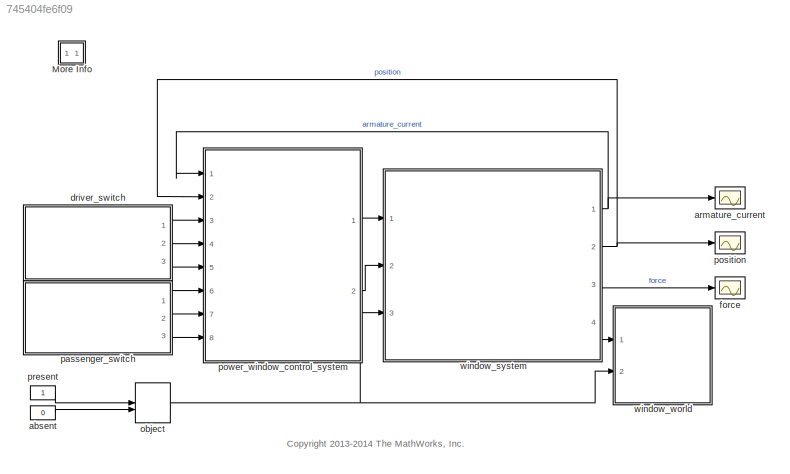
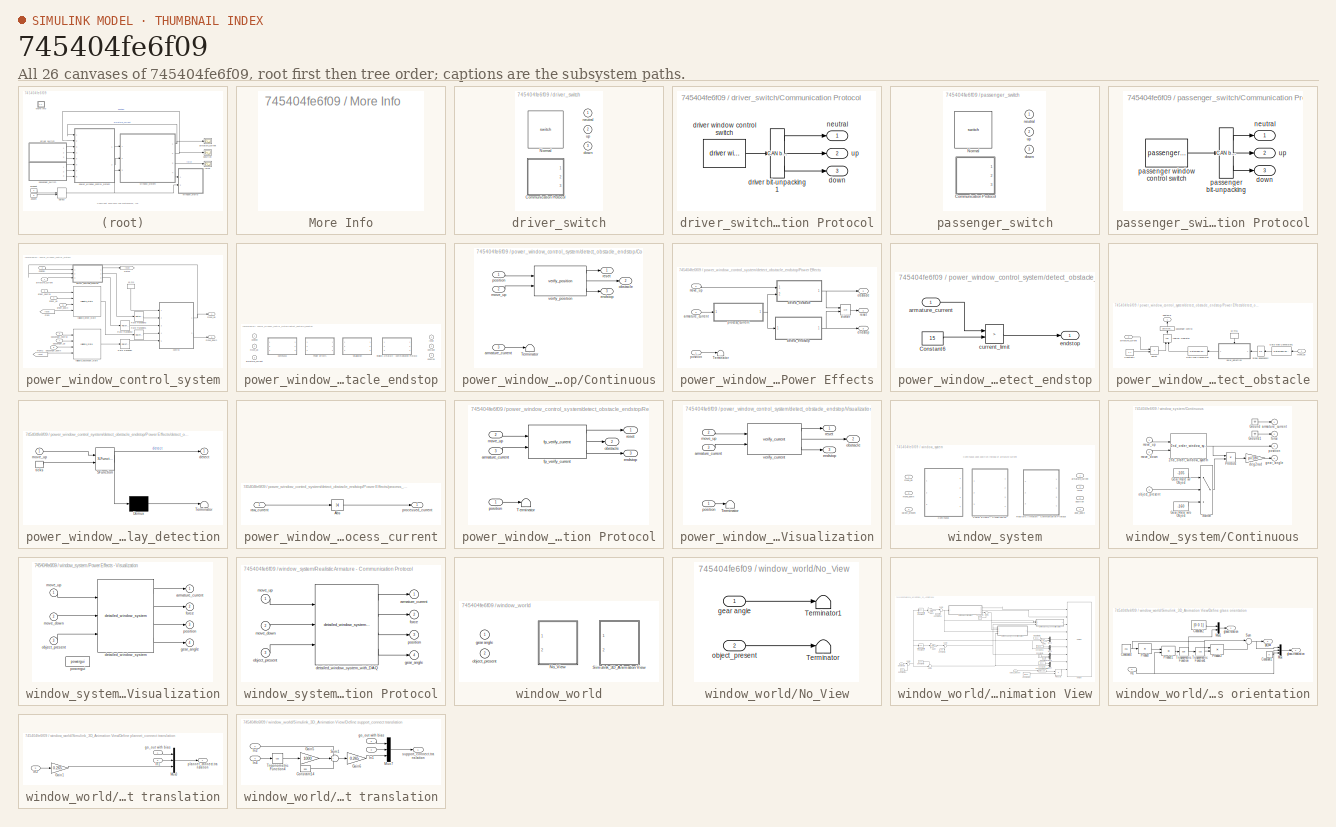
[diagram: thumbnail index - all 26 canvases of the model, root first then tree order]
MODEL slx_745404fe6f09
KIND model
CONFIG PreLoadFcn = if ~exist('CV', 'var') & exist('slexPowerWindowContinuous','file')\n   slexPowerWindowContinuous\nend
BLOCK [SubSystem] More Info
  OpenFcn = showdemo('slexPowerWindowScript')
  Ports = []
  RequestExecContextInheritance = off
BLOCK [Constant] absent
  OutDataTypeStr = boolean
  Value = 0
BLOCK [Scope] armature_current
  Floating = off
  LimitDataPoints = off
  NumInputPorts = 1
  Ports = [1]
  SaveName = ScopeData2
  ShowLegends = off
  YMax = 15
  YMin = -15
BLOCK [SubSystem] driver_switch
  Ports = [0, 3]
  RequestExecContextInheritance = off
  Variant = on
BLOCK [SubSystem] driver_switch/Communication Protocol
  Ports = [0, 3]
  RequestExecContextInheritance = off
  VariantControl = V5
BLOCK [Outport] driver_switch/Communication Protocol/down
  IconDisplay = Port number
  Port = 3
BLOCK [Reference] driver_switch/Communication Protocol/driver bit-unpacking1  REF=slrtlib/CAN/Utilities/CAN bit-unpacking 
  Ports = [1, 3]
  SourceBlock = slrtlib/CAN/Utilities/CAN bit-unpacking
  SourceType = double2bit
  bitpatterns = { [0:0] [1:1] [2:2] }
  dtypes = { 'boolean' 'boolean' 'boolean' }
BLOCK [Reference] driver_switch/Communication Protocol/driver window control switch  REF=slexPowerWindowDSPLib/driver window control
switch
  Ports = [0, 1]
  SourceBlock = slexPowerWindowDSPLib/driver window control\nswitch
  SourceType = SubSystem
BLOCK [Outport] driver_switch/Communication Protocol/neutral
  IconDisplay = Port number
BLOCK [Outport] driver_switch/Communication Protocol/up
  IconDisplay = Port number
  Port = 2
BLOCK [Reference] driver_switch/Normal  REF=slexPowerWindowSALib/switch
  Ports = [0, 3]
  SourceBlock = slexPowerWindowSALib/switch
  SourceType = SubSystem
  VariantControl = V1234
BLOCK [Outport] driver_switch/down
  IconDisplay = Port number
  Port = 3
BLOCK [Outport] driver_switch/neutral
  IconDisplay = Port number
BLOCK [Outport] driver_switch/up
  IconDisplay = Port number
  Port = 2
BLOCK [Scope] force
  Floating = off
  LimitDataPoints = off
  NumInputPorts = 1
  Ports = [1]
  SaveName = ScopeData4
  ShowLegends = off
  YMax = 75
  YMin = -175
BLOCK [ManualSwitch] object
  CurrentSetting = 0
BLOCK [SubSystem] passenger_switch
  Ports = [0, 3]
  RequestExecContextInheritance = off
  Variant = on
BLOCK [SubSystem] passenger_switch/Communication Protocol
  Ports = [0, 3]
  RequestExecContextInheritance = off
  VariantControl = V5
BLOCK [Outport] passenger_switch/Communication Protocol/down
  IconDisplay = Port number
  Port = 3
BLOCK [Outport] passenger_switch/Communication Protocol/neutral
  IconDisplay = Port number
BLOCK [Reference] passenger_switch/Communication Protocol/passenger bit-unpacking  REF=slrtlib/CAN/Utilities/CAN bit-unpacking 
  Ports = [1, 3]
  SourceBlock = slrtlib/CAN/Utilities/CAN bit-unpacking
  SourceType = double2bit
  bitpatterns = { [0:0] [1:1] [2:2] }
  dtypes = { 'boolean' 'boolean' 'boolean' }
BLOCK [Reference] passenger_switch/Communication Protocol/passenger window control switch  REF=slexPowerWindowDSPLib/passenger window control
switch
  Ports = [0, 1]
  SourceBlock = slexPowerWindowDSPLib/passenger window control\nswitch
  SourceType = SubSystem
BLOCK [Outport] passenger_switch/Communication Protocol/up
  IconDisplay = Port number
  Port = 2
BLOCK [Reference] passenger_switch/Normal  REF=slexPowerWindowSALib/switch
  Ports = [0, 3]
  SourceBlock = slexPowerWindowSALib/switch
  SourceType = SubSystem
  VariantControl = V1234
BLOCK [Outport] passenger_switch/down
  IconDisplay = Port number
  Port = 3
BLOCK [Outport] passenger_switch/neutral
  IconDisplay = Port number
BLOCK [Outport] passenger_switch/up
  IconDisplay = Port number
  Port = 2
BLOCK [Scope] position
  Floating = off
  LimitDataPoints = off
  NumInputPorts = 1
  Ports = [1]
  ShowLegends = off
  TimeRange = 10
  YMax = 0.5
  YMin = -0.5
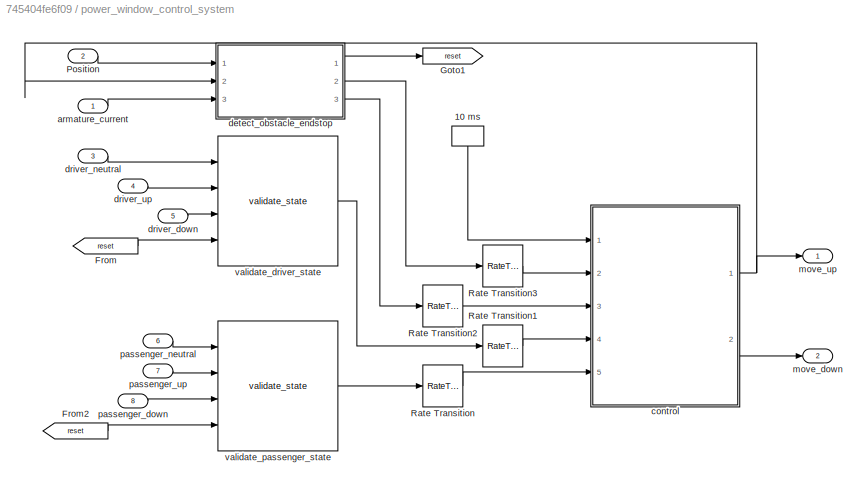
BLOCK [SubSystem] power_window_control_system
  Ports = [8, 2]
  RequestExecContextInheritance = off
BLOCK [DiscretePulseGenerator] power_window_control_system/10 ms
  Ports = [0, 1]
  SampleTime = 10e-3
BLOCK [From] power_window_control_system/From
  CloseFcn = tagdialog Close
  GotoTag = reset
BLOCK [From] power_window_control_system/From2
  CloseFcn = tagdialog Close
  GotoTag = reset
BLOCK [Goto] power_window_control_system/Goto1
  GotoTag = reset
BLOCK [Inport] power_window_control_system/Position
  IconDisplay = Port number
  Port = 2
BLOCK [RateTransition] power_window_control_system/Rate Transition
BLOCK [RateTransition] power_window_control_system/Rate Transition1
BLOCK [RateTransition] power_window_control_system/Rate Transition2
BLOCK [RateTransition] power_window_control_system/Rate Transition3
BLOCK [Inport] power_window_control_system/armature_current
  IconDisplay = Port number
BLOCK [ModelReference] power_window_control_system/control 
  CopyOfModelName = slexPowerWindowControl.slx
  DefaultDataLogging = on
  ModelNameDialog = slexPowerWindowControl.slx
  ModelReferenceVersion = 1.83
  Ports = [5, 2]
BLOCK [SubSystem] power_window_control_system/detect_obstacle_endstop
  Ports = [3, 3]
  RequestExecContextInheritance = off
  Variant = on
BLOCK [SubSystem] power_window_control_system/detect_obstacle_endstop/Continuous
  Ports = [3, 3]
  RequestExecContextInheritance = off
  VariantControl = V1
BLOCK [Terminator] power_window_control_system/detect_obstacle_endstop/Continuous/Terminator
BLOCK [Inport] power_window_control_system/detect_obstacle_endstop/Continuous/armature_current
  IconDisplay = Port number
  Port = 3
BLOCK [Outport] power_window_control_system/detect_obstacle_endstop/Continuous/endstop
  IconDisplay = Port number
  Port = 3
BLOCK [Inport] power_window_control_system/detect_obstacle_endstop/Continuous/move_up
  IconDisplay = Port number
  Port = 2
BLOCK [Outport] power_window_control_system/detect_obstacle_endstop/Continuous/obstacle
  IconDisplay = Port number
  Port = 2
BLOCK [Inport] power_window_control_system/detect_obstacle_endstop/Continuous/position
  IconDisplay = Port number
BLOCK [Outport] power_window_control_system/detect_obstacle_endstop/Continuous/reset
  IconDisplay = Port number
BLOCK [Reference] power_window_control_system/detect_obstacle_endstop/Continuous/verify_position  REF=slexPowerWindowSALib/verify_position
  Ports = [2, 3]
  SourceBlock = slexPowerWindowSALib/verify_position
  SourceType = SubSystem
BLOCK [SubSystem] power_window_control_system/detect_obstacle_endstop/Power Effects
  Ports = [3, 3]
  RequestExecContextInheritance = off
  VariantControl = V2
BLOCK [Terminator] power_window_control_system/detect_obstacle_endstop/Power Effects/Terminator
BLOCK [Inport] power_window_control_system/detect_obstacle_endstop/Power Effects/armature_current
  IconDisplay = Port number
  Port = 3
BLOCK [SubSystem] power_window_control_system/detect_obstacle_endstop/Power Effects/detect_endstop
  Ports = [1, 1]
  RequestExecContextInheritance = off
BLOCK [Constant] power_window_control_system/detect_obstacle_endstop/Power Effects/detect_endstop/Constant6
  Value = 15
BLOCK [Inport] power_window_control_system/detect_obstacle_endstop/Power Effects/detect_endstop/armature_current
  IconDisplay = Port number
BLOCK [RelationalOperator] power_window_control_system/detect_obstacle_endstop/Power Effects/detect_endstop/current_limit
  Operator = >
  Ports = [2, 1]
BLOCK [Outport] power_window_control_system/detect_obstacle_endstop/Power Effects/detect_endstop/endstop
  IconDisplay = Port number
BLOCK [SubSystem] power_window_control_system/detect_obstacle_endstop/Power Effects/detect_obstacle
  Ports = [2, 1]
  RequestExecContextInheritance = off
BLOCK [DiscretePulseGenerator] power_window_control_system/detect_obstacle_endstop/Power Effects/detect_obstacle/10 ms1
  Ports = [0, 1]
  SampleTime = 10e-3
BLOCK [Constant] power_window_control_system/detect_obstacle_endstop/Power Effects/detect_obstacle/Constant1
  Value = 1.7
BLOCK [DataTypeConversion] power_window_control_system/detect_obstacle_endstop/Power Effects/detect_obstacle/Data Type Conversion
  RndMeth = Floor
  SaturateOnIntegerOverflow = off
BLOCK [DataTypeConversion] power_window_control_system/detect_obstacle_endstop/Power Effects/detect_obstacle/Data Type Conversion1
  RndMeth = Floor
  SaturateOnIntegerOverflow = off
BLOCK [Logic] power_window_control_system/detect_obstacle_endstop/Power Effects/detect_obstacle/Logical Operator
  AllPortsSameDT = off
  IconShape = distinctive
  OutDataTypeStr = boolean
  Ports = [2, 1]
BLOCK [Inport] power_window_control_system/detect_obstacle_endstop/Power Effects/detect_obstacle/armature_current
  IconDisplay = Port number
  Port = 2
BLOCK [UnitDelay] power_window_control_system/detect_obstacle_endstop/Power Effects/detect_obstacle/break dependency
  SampleTime = 0.01
BLOCK [SubSystem] power_window_control_system/detect_obstacle_endstop/Power Effects/detect_obstacle/delay_detection
  ErrorFcn = Stateflow.Translate.translate
  PermitHierarchicalResolution = ExplicitOnly
  Ports = [1, 1, 0, 1]
  RequestExecContextInheritance = off
  SFBlockType = Chart
  TreatAsAtomicUnit = on
BLOCK [Demux] power_window_control_system/detect_obstacle_endstop/Power Effects/detect_obstacle/delay_detection/ Demux 
  Outputs = 1
  Ports = [1, 1]
BLOCK [S-Function] power_window_control_system/detect_obstacle_endstop/Power Effects/detect_obstacle/delay_detection/ SFunction 
  EnableBusSupport = on
  FunctionName = sf_sfun
  PortCounts = [2 2]
  Ports = [2, 2]
  Tag = Stateflow S-Function slexPowerWindowExample 3
BLOCK [Terminator] power_window_control_system/detect_obstacle_endstop/Power Effects/detect_obstacle/delay_detection/ Terminator 
BLOCK [Outport] power_window_control_system/detect_obstacle_endstop/Power Effects/detect_obstacle/delay_detection/ detect
  IconDisplay = Port number
BLOCK [Inport] power_window_control_system/detect_obstacle_endstop/Power Effects/detect_obstacle/delay_detection/move_up
  IconDisplay = Port number
BLOCK [TriggerPort] power_window_control_system/detect_obstacle_endstop/Power Effects/detect_obstacle/delay_detection/ticks
  Ports = [0, 1]
  ShowOutputPort = on
  TriggerType = either
BLOCK [Inport] power_window_control_system/detect_obstacle_endstop/Power Effects/detect_obstacle/move_up
  IconDisplay = Port number
BLOCK [RelationalOperator] power_window_control_system/detect_obstacle_endstop/Power Effects/detect_obstacle/object
  Operator = >
  Ports = [2, 1]
BLOCK [Outport] power_window_control_system/detect_obstacle_endstop/Power Effects/detect_obstacle/obstacle
  IconDisplay = Port number
BLOCK [DataTypeConversion] power_window_control_system/detect_obstacle_endstop/Power Effects/detect_obstacle/passenger control
  OutDataTypeStr = boolean
BLOCK [Logic] power_window_control_system/detect_obstacle_endstop/Power Effects/either
  Operator = OR
  Ports = [2, 1]
BLOCK [Outport] power_window_control_system/detect_obstacle_endstop/Power Effects/endstop
  IconDisplay = Port number
  Port = 3
BLOCK [Inport] power_window_control_system/detect_obstacle_endstop/Power Effects/move_up
  IconDisplay = Port number
  Port = 2
BLOCK [Outport] power_window_control_system/detect_obstacle_endstop/Power Effects/obstacle
  IconDisplay = Port number
  Port = 2
BLOCK [Inport] power_window_control_system/detect_obstacle_endstop/Power Effects/position
  IconDisplay = Port number
BLOCK [SubSystem] power_window_control_system/detect_obstacle_endstop/Power Effects/process_current
  Ports = [1, 1]
  RequestExecContextInheritance = off
BLOCK [Abs] power_window_control_system/detect_obstacle_endstop/Power Effects/process_current/Abs
BLOCK [Outport] power_window_control_system/detect_obstacle_endstop/Power Effects/process_current/processed_current
  IconDisplay = Port number
BLOCK [Inport] power_window_control_system/detect_obstacle_endstop/Power Effects/process_current/raw_current
  IconDisplay = Port number
BLOCK [Outport] power_window_control_system/detect_obstacle_endstop/Power Effects/reset
  IconDisplay = Port number
BLOCK [SubSystem] power_window_control_system/detect_obstacle_endstop/Realistic Armature - Communication Protocol
  Ports = [3, 3]
  RequestExecContextInheritance = off
  VariantControl = V45
BLOCK [Terminator] power_window_control_system/detect_obstacle_endstop/Realistic Armature - Communication Protocol/Terminator
BLOCK [Inport] power_window_control_system/detect_obstacle_endstop/Realistic Armature - Communication Protocol/armature_current
  IconDisplay = Port number
  Port = 3
BLOCK [Outport] power_window_control_system/detect_obstacle_endstop/Realistic Armature - Communication Protocol/endstop
  IconDisplay = Port number
  Port = 3
BLOCK [Reference] power_window_control_system/detect_obstacle_endstop/Realistic Armature - Communication Protocol/fp_verify_current  REF=slexPowerWindowSALib/fp_verify_current
  Ports = [2, 3]
  SourceBlock = slexPowerWindowSALib/fp_verify_current
  SourceType = SubSystem
BLOCK [Inport] power_window_control_system/detect_obstacle_endstop/Realistic Armature - Communication Protocol/move_up
  IconDisplay = Port number
  Port = 2
BLOCK [Outport] power_window_control_system/detect_obstacle_endstop/Realistic Armature - Communication Protocol/obstacle
  IconDisplay = Port number
  Port = 2
BLOCK [Inport] power_window_control_system/detect_obstacle_endstop/Realistic Armature - Communication Protocol/position
  IconDisplay = Port number
BLOCK [Outport] power_window_control_system/detect_obstacle_endstop/Realistic Armature - Communication Protocol/reset
  IconDisplay = Port number
BLOCK [SubSystem] power_window_control_system/detect_obstacle_endstop/Visualization
  Ports = [3, 3]
  RequestExecContextInheritance = off
  VariantControl = V3
BLOCK [Terminator] power_window_control_system/detect_obstacle_endstop/Visualization/Terminator
BLOCK [Inport] power_window_control_system/detect_obstacle_endstop/Visualization/armature_current
  IconDisplay = Port number
  Port = 3
BLOCK [Outport] power_window_control_system/detect_obstacle_endstop/Visualization/endstop
  IconDisplay = Port number
  Port = 3
BLOCK [Inport] power_window_control_system/detect_obstacle_endstop/Visualization/move_up
  IconDisplay = Port number
  Port = 2
BLOCK [Outport] power_window_control_system/detect_obstacle_endstop/Visualization/obstacle
  IconDisplay = Port number
  Port = 2
BLOCK [Inport] power_window_control_system/detect_obstacle_endstop/Visualization/position
  IconDisplay = Port number
BLOCK [Outport] power_window_control_system/detect_obstacle_endstop/Visualization/reset
  IconDisplay = Port number
BLOCK [Reference] power_window_control_system/detect_obstacle_endstop/Visualization/verify_current  REF=slexPowerWindowSALib/verify_current
  Ports = [2, 3]
  SourceBlock = slexPowerWindowSALib/verify_current
  SourceType = SubSystem
BLOCK [Inport] power_window_control_system/detect_obstacle_endstop/armature_current
  IconDisplay = Port number
  Port = 3
BLOCK [Outport] power_window_control_system/detect_obstacle_endstop/endstop
  IconDisplay = Port number
  Port = 3
BLOCK [Inport] power_window_control_system/detect_obstacle_endstop/move_up
  IconDisplay = Port number
  Port = 2
BLOCK [Outport] power_window_control_system/detect_obstacle_endstop/obstacle
  IconDisplay = Port number
  Port = 2
BLOCK [Inport] power_window_control_system/detect_obstacle_endstop/position
  IconDisplay = Port number
BLOCK [Outport] power_window_control_system/detect_obstacle_endstop/reset
  IconDisplay = Port number
BLOCK [Inport] power_window_control_system/driver_down
  IconDisplay = Port number
  Port = 5
BLOCK [Inport] power_window_control_system/driver_neutral
  IconDisplay = Port number
  Port = 3
BLOCK [Inport] power_window_control_system/driver_up
  IconDisplay = Port number
  Port = 4
BLOCK [Outport] power_window_control_system/move_down
  IconDisplay = Port number
  Port = 2
BLOCK [Outport] power_window_control_system/move_up
  IconDisplay = Port number
BLOCK [Inport] power_window_control_system/passenger_down
  IconDisplay = Port number
  Port = 8
BLOCK [Inport] power_window_control_system/passenger_neutral
  IconDisplay = Port number
  Port = 6
BLOCK [Inport] power_window_control_system/passenger_up
  IconDisplay = Port number
  Port = 7
BLOCK [Reference] power_window_control_system/validate_driver_state  REF=slexPowerWindowSALib/validate_state
  Ports = [4, 1]
  SourceBlock = slexPowerWindowSALib/validate_state
  SourceType = SubSystem
BLOCK [Reference] power_window_control_system/validate_passenger_state  REF=slexPowerWindowSALib/validate_state
  Ports = [4, 1]
  SourceBlock = slexPowerWindowSALib/validate_state
  SourceType = SubSystem
BLOCK [Constant] present
  OutDataTypeStr = boolean
BLOCK [SubSystem] window_system
  Ports = [3, 4]
  RequestExecContextInheritance = off
  Variant = on
BLOCK [SubSystem] window_system/Continuous
  Ports = [3, 4]
  RequestExecContextInheritance = off
  VariantControl = V1
BLOCK [Reference] window_system/Continuous/2nd_order_window_system  REF=slexPowerWindowSALib/2nd_order_window_system
  Ports = [2, 1]
  SourceBlock = slexPowerWindowSALib/2nd_order_window_system
  SourceType = SubSystem
BLOCK [Constant] window_system/Continuous/Gear Rate w// Object
  AttributesFormatString = Units: deg/m
  Value = -105
BLOCK [Constant] window_system/Continuous/Gear Rate w//o Object
  AttributesFormatString = Units: deg/m
  Value = -160
BLOCK [Ground] window_system/Continuous/Ground
BLOCK [Ground] window_system/Continuous/Ground1
BLOCK [Product] window_system/Continuous/Product
  InputSameDT = off
  OutDataTypeStr = Inherit: Inherit via internal rule
  Ports = [2, 1]
  RndMeth = Floor
  SaturateOnIntegerOverflow = off
BLOCK [Switch] window_system/Continuous/Switch
  Criteria = u2 ~= 0
  InputSameDT = off
  SaturateOnIntegerOverflow = off
BLOCK [Outport] window_system/Continuous/armature_current
  IconDisplay = Port number
BLOCK [Gain] window_system/Continuous/deg2rad
  Gain = pi/180
  OutDataTypeStr = Inherit: Inherit via internal rule
  ParamDataTypeStr = Inherit: Inherit via internal rule
  SaturateOnIntegerOverflow = off
BLOCK [Outport] window_system/Continuous/force
  IconDisplay = Port number
  Port = 2
BLOCK [Outport] window_system/Continuous/gear_angle
  IconDisplay = Port number
  Port = 4
BLOCK [Inport] window_system/Continuous/move_down
  IconDisplay = Port number
  Port = 2
BLOCK [Inport] window_system/Continuous/move_up
  IconDisplay = Port number
BLOCK [Inport] window_system/Continuous/object_present
  IconDisplay = Port number
  Port = 3
BLOCK [Outport] window_system/Continuous/position
  IconDisplay = Port number
  Port = 3
BLOCK [SubSystem] window_system/Power Effects - Visualization
  Ports = [3, 4]
  RequestExecContextInheritance = off
  VariantControl = V23
BLOCK [Outport] window_system/Power Effects - Visualization/armature_current
  IconDisplay = Port number
BLOCK [Reference] window_system/Power Effects - Visualization/detailed_window_system  REF=slexPowerWindowPHYSLib/detailed_window_system
  Ports = [3, 4]
  SourceBlock = slexPowerWindowPHYSLib/detailed_window_system
  SourceType = SubSystem
BLOCK [Outport] window_system/Power Effects - Visualization/force
  IconDisplay = Port number
  Port = 2
BLOCK [Outport] window_system/Power Effects - Visualization/gear_angle
  IconDisplay = Port number
  Port = 4
BLOCK [Inport] window_system/Power Effects - Visualization/move_down
  IconDisplay = Port number
  Port = 2
BLOCK [Inport] window_system/Power Effects - Visualization/move_up
  IconDisplay = Port number
BLOCK [Inport] window_system/Power Effects - Visualization/object_present
  IconDisplay = Port number
  Port = 3
BLOCK [Outport] window_system/Power Effects - Visualization/position
  IconDisplay = Port number
  Port = 3
BLOCK [Reference] window_system/Power Effects - Visualization/powergui  REF=powerlib/powergui
  DisableRonSwitches = off
  DisableSnubberDevices = off
  DisableVfSwitches = off
  DisplayEquations = off
  DisplayStyle = 1
  EnableUseOfTLC = off
  ErrMax = 1e-4
  Frange = [0:2:500]
  FreqAxis = off
  FunctionMessages = on
  HookPort = off
  Interpol = off
  Iterations = 50
  MaxFrequency = 1000
  Pbase = 100e6
  Ports = []
  ResistiveCurrentMeasurement = off
  RestoreLinks = warning
  RmsSteady = 1
  SPID = off
  SampleTime = 50e-6
  ShowGrid = off
  SolverType = Tustin
  SourceBlock = powerlib/powergui
  SourceType = PSB option menu block
  StartTime = 0.0
  SwTol = 0
  Ts = 0
  UnitsV = kV
  UnitsW = MW
  UserDataPersistent = on
  Xlog = on
  Ylog = off
  ZoomFFT = on
  cycles = 1
  display = off
  echomessages = off
  frequency = 60
  frequencyindice = 0
  frequencyindicesteady = 1
  fundamental = 60
  methode = off
  save = off
  structure = 0
  variable = ZData
  x0status = blocks
BLOCK [SubSystem] window_system/Realistic Armature - Communication Protocol
  Ports = [3, 4]
  RequestExecContextInheritance = off
  VariantControl = V45
BLOCK [Outport] window_system/Realistic Armature - Communication Protocol/armature_current
  IconDisplay = Port number
BLOCK [Reference] window_system/Realistic Armature - Communication Protocol/detailed_window_system_with_DAQ  REF=slexPowerWindowPHYSLib/detailed_window_system_with_DAQ
  Ports = [3, 4]
  SourceBlock = slexPowerWindowPHYSLib/detailed_window_system_with_DAQ
  SourceType = SubSystem
  VariantControl = Variant3
BLOCK [Outport] window_system/Realistic Armature - Communication Protocol/force
  IconDisplay = Port number
  Port = 2
BLOCK [Outport] window_system/Realistic Armature - Communication Protocol/gear_angle
  IconDisplay = Port number
  Port = 4
BLOCK [Inport] window_system/Realistic Armature - Communication Protocol/move_down
  IconDisplay = Port number
  Port = 2
BLOCK [Inport] window_system/Realistic Armature - Communication Protocol/move_up
  IconDisplay = Port number
BLOCK [Inport] window_system/Realistic Armature - Communication Protocol/object_present
  IconDisplay = Port number
  Port = 3
BLOCK [Outport] window_system/Realistic Armature - Communication Protocol/position
  IconDisplay = Port number
  Port = 3
BLOCK [Outport] window_system/armature_current
  IconDisplay = Port number
BLOCK [Outport] window_system/force
  IconDisplay = Port number
  Port = 3
BLOCK [Outport] window_system/gear_angle
  IconDisplay = Port number
  Port = 4
BLOCK [Inport] window_system/move_down
  IconDisplay = Port number
  Port = 2
BLOCK [Inport] window_system/move_up
  IconDisplay = Port number
BLOCK [Inport] window_system/object_present
  IconDisplay = Port number
  Port = 3
BLOCK [Outport] window_system/position
  IconDisplay = Port number
  Port = 2
BLOCK [SubSystem] window_world
  LoadFcn = if license('test','virtual_reality_toolbox') & exist('slexPowerWindowMechWindow.wrl','file')\n     SL3DBlock = [gcs '/window_world/Simulink_3D_Animation View/VR Sink'];\n     vrmfunc('FnOpen', get_param(SL3DBlock,'handle'));\nend
  Ports = [2]
  RequestExecContextInheritance = off
  Variant = on
BLOCK [SubSystem] window_world/No_View
  Ports = [2]
  RequestExecContextInheritance = off
  VariantControl = V0
BLOCK [Terminator] window_world/No_View/Terminator
BLOCK [Terminator] window_world/No_View/Terminator1
BLOCK [Inport] window_world/No_View/gear angle
  IconDisplay = Port number
BLOCK [Inport] window_world/No_View/object_present
  IconDisplay = Port number
  Port = 2
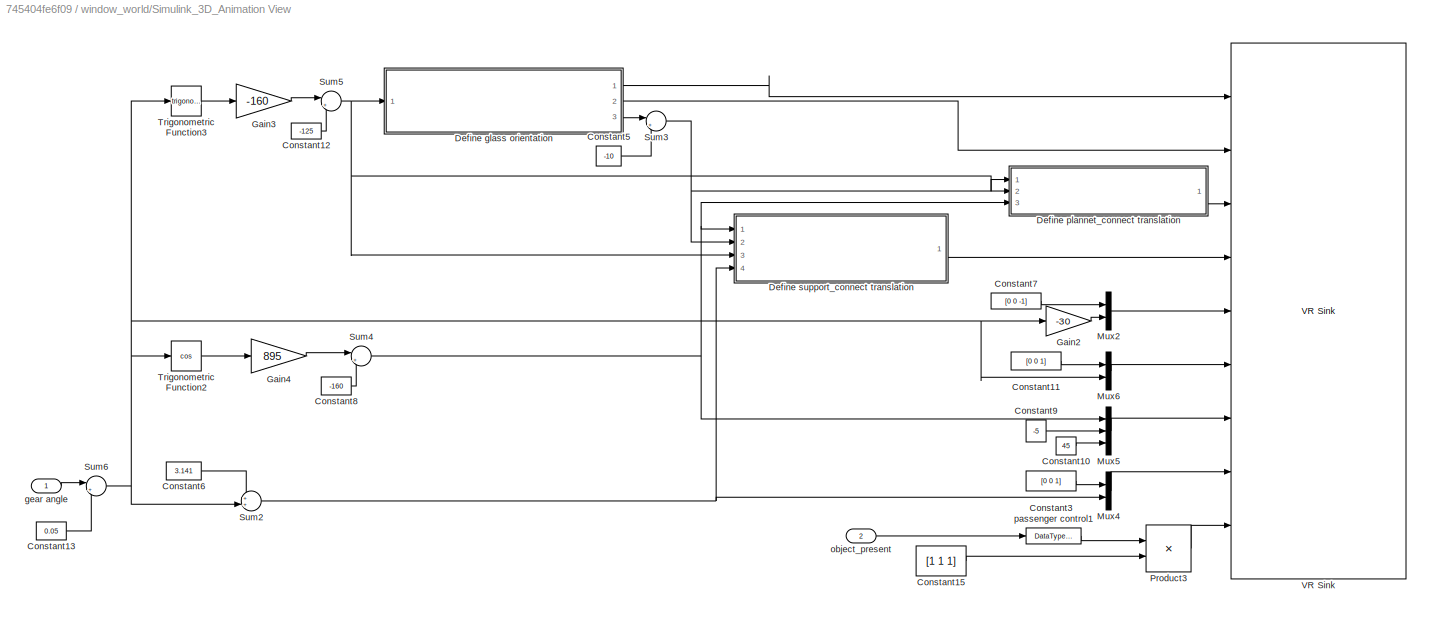
BLOCK [SubSystem] window_world/Simulink_3D_Animation View
  Ports = [2]
  RequestExecContextInheritance = off
  VariantControl = V12345
BLOCK [Constant] window_world/Simulink_3D_Animation View/Constant10
  Value = 45
BLOCK [Constant] window_world/Simulink_3D_Animation View/Constant11
  Value = [0 0 1]
BLOCK [Constant] window_world/Simulink_3D_Animation View/Constant12
  Value = -125
BLOCK [Constant] window_world/Simulink_3D_Animation View/Constant13
  Value = 0.05
BLOCK [Constant] window_world/Simulink_3D_Animation View/Constant15
  Value = [1 1 1]
BLOCK [Constant] window_world/Simulink_3D_Animation View/Constant3
  Value = [0 0 1]
BLOCK [Constant] window_world/Simulink_3D_Animation View/Constant5
  Value = -10
BLOCK [Constant] window_world/Simulink_3D_Animation View/Constant6
  Value = 3.141
BLOCK [Constant] window_world/Simulink_3D_Animation View/Constant7
  Value = [0 0 -1]
BLOCK [Constant] window_world/Simulink_3D_Animation View/Constant8
  Value = -160
BLOCK [Constant] window_world/Simulink_3D_Animation View/Constant9
  Value = -5
BLOCK [SubSystem] window_world/Simulink_3D_Animation View/Define glass orientation
  Ports = [1, 3]
  RequestExecContextInheritance = off
BLOCK [Constant] window_world/Simulink_3D_Animation View/Define glass orientation/Constant1
  Value = 0
BLOCK [Constant] window_world/Simulink_3D_Animation View/Define glass orientation/Constant2
  Value = [0 0 1]
BLOCK [Constant] window_world/Simulink_3D_Animation View/Define glass orientation/Constant4
  Value = 265
BLOCK [Inport] window_world/Simulink_3D_Animation View/Define glass orientation/In1
  IconDisplay = Port number
BLOCK [Mux] window_world/Simulink_3D_Animation View/Define glass orientation/Mux
  DisplayOption = bar
  Inputs = 3
  Ports = [3, 1]
BLOCK [Mux] window_world/Simulink_3D_Animation View/Define glass orientation/Mux1
  DisplayOption = bar
  Inputs = 2
  Ports = [2, 1]
BLOCK [Product] window_world/Simulink_3D_Animation View/Define glass orientation/Product
  Inputs = /
  Ports = [1, 1]
  RndMeth = Floor
BLOCK [Product] window_world/Simulink_3D_Animation View/Define glass orientation/Product1
  Ports = [2, 1]
  RndMeth = Floor
BLOCK [Product] window_world/Simulink_3D_Animation View/Define glass orientation/Product2
  Ports = [2, 1]
  RndMeth = Floor
BLOCK [Sum] window_world/Simulink_3D_Animation View/Define glass orientation/Sum
  IconShape = round
  Inputs = |-+
  Ports = [2, 1]
BLOCK [Trigonometry] window_world/Simulink_3D_Animation View/Define glass orientation/Trigonometric Function
  Operator = asin
  Ports = [1, 1]
BLOCK [Trigonometry] window_world/Simulink_3D_Animation View/Define glass orientation/Trigonometric Function1
  Operator = cos
  Ports = [1, 1]
BLOCK [Outport] window_world/Simulink_3D_Animation View/Define glass orientation/glass.rotation
  IconDisplay = Port number
BLOCK [Outport] window_world/Simulink_3D_Animation View/Define glass orientation/glass.translation
  IconDisplay = Port number
  Port = 2
BLOCK [Outport] window_world/Simulink_3D_Animation View/Define glass orientation/go_out
  IconDisplay = Port number
  Port = 3
BLOCK [SubSystem] window_world/Simulink_3D_Animation View/Define plannet_connect translation
  Ports = [3, 1]
  RequestExecContextInheritance = off
BLOCK [Gain] window_world/Simulink_3D_Animation View/Define plannet_connect translation/Gain1
  Gain = 0.265
BLOCK [Inport] window_world/Simulink_3D_Animation View/Define plannet_connect translation/In1
  IconDisplay = Port number
  Port = 2
BLOCK [Inport] window_world/Simulink_3D_Animation View/Define plannet_connect translation/In2
  IconDisplay = Port number
  Port = 3
BLOCK [Mux] window_world/Simulink_3D_Animation View/Define plannet_connect translation/Mux3
  DisplayOption = bar
  Inputs = 3
  Ports = [3, 1]
BLOCK [Inport] window_world/Simulink_3D_Animation View/Define plannet_connect translation/go_out with bias
  IconDisplay = Port number
BLOCK [Outport] window_world/Simulink_3D_Animation View/Define plannet_connect translation/plannet_connect.translation
  IconDisplay = Port number
BLOCK [SubSystem] window_world/Simulink_3D_Animation View/Define support_connect translation
  Ports = [4, 1]
  RequestExecContextInheritance = off
BLOCK [Constant] window_world/Simulink_3D_Animation View/Define support_connect translation/Constant14
  Value = 305
BLOCK [Gain] window_world/Simulink_3D_Animation View/Define support_connect translation/Gain5
  Gain = 1000
BLOCK [Gain] window_world/Simulink_3D_Animation View/Define support_connect translation/Gain6
  Gain = 0.265
BLOCK [Inport] window_world/Simulink_3D_Animation View/Define support_connect translation/In1
  IconDisplay = Port number
  Port = 3
BLOCK [Inport] window_world/Simulink_3D_Animation View/Define support_connect translation/In2
  IconDisplay = Port number
BLOCK [Inport] window_world/Simulink_3D_Animation View/Define support_connect translation/In4
  IconDisplay = Port number
  Port = 4
BLOCK [Mux] window_world/Simulink_3D_Animation View/Define support_connect translation/Mux7
  DisplayOption = bar
  Inputs = 3
  Ports = [3, 1]
BLOCK [Sum] window_world/Simulink_3D_Animation View/Define support_connect translation/Sum1
  IconShape = round
  Inputs = +++
  Ports = [3, 1]
BLOCK [Trigonometry] window_world/Simulink_3D_Animation View/Define support_connect translation/Trigonometric Function4
  Operator = cos
  Ports = [1, 1]
BLOCK [Inport] window_world/Simulink_3D_Animation View/Define support_connect translation/go_out with bias
  IconDisplay = Port number
  Port = 2
BLOCK [Outport] window_world/Simulink_3D_Animation View/Define support_connect translation/support_connect.translation
  IconDisplay = Port number
BLOCK [Gain] window_world/Simulink_3D_Animation View/Gain2
  Gain = -30
BLOCK [Gain] window_world/Simulink_3D_Animation View/Gain3
  Gain = -160
BLOCK [Gain] window_world/Simulink_3D_Animation View/Gain4
  Gain = 895
BLOCK [Mux] window_world/Simulink_3D_Animation View/Mux2
  DisplayOption = bar
  Inputs = 2
  Ports = [2, 1]
BLOCK [Mux] window_world/Simulink_3D_Animation View/Mux4
  DisplayOption = bar
  Inputs = 2
  Ports = [2, 1]
BLOCK [Mux] window_world/Simulink_3D_Animation View/Mux5
  DisplayOption = bar
  Inputs = 3
  Ports = [3, 1]
BLOCK [Mux] window_world/Simulink_3D_Animation View/Mux6
  DisplayOption = bar
  Inputs = 2
  Ports = [2, 1]
BLOCK [Product] window_world/Simulink_3D_Animation View/Product3
  Ports = [2, 1]
  RndMeth = Floor
BLOCK [Sum] window_world/Simulink_3D_Animation View/Sum2
  IconShape = round
  Inputs = ++|
  Ports = [2, 1]
BLOCK [Sum] window_world/Simulink_3D_Animation View/Sum3
  IconShape = round
  Inputs = |++
  Ports = [2, 1]
BLOCK [Sum] window_world/Simulink_3D_Animation View/Sum4
  IconShape = round
  Inputs = |++
  Ports = [2, 1]
BLOCK [Sum] window_world/Simulink_3D_Animation View/Sum5
  IconShape = round
  Inputs = |++
  Ports = [2, 1]
BLOCK [Sum] window_world/Simulink_3D_Animation View/Sum6
  IconShape = round
  Inputs = |++
  Ports = [2, 1]
BLOCK [Trigonometry] window_world/Simulink_3D_Animation View/Trigonometric Function2
  Operator = cos
  Ports = [1, 1]
BLOCK [Trigonometry] window_world/Simulink_3D_Animation View/Trigonometric Function3
  Ports = [1, 1]
BLOCK [Reference] window_world/Simulink_3D_Animation View/VR Sink  REF=vrlib/VR Sink
  AllowVariableSize = off
  AutoView = off
  FieldsWritten = glass.rotation.4.1.1.double#glass.translation.3.1.1.double#plannet_connect.translation.3.1.1.double#support_connect.translation.3.1.1.double#worm.rotation.4.1.1.double#planetROT.rotation.4.1.1.double#support.translation.3.1.1.double#supportROT.rotation.4.1.1.double#balloon.scale.3.1.1.double
  FigureProperties = {'Position', 'Name', 'Viewpoint', 'CameraBound', 'CameraDirection', 'CameraPosition', 'CameraUpVector', 'ZoomFactor', 'Antialiasing', 'Headlight', 'Lighting', 'NavPanel', 'Sound', 'StatusBar', 'Stereo3D', 'Stereo3DCameraOffset', 'Stereo3DHIT', 'ToolBar', 'Textures', 'Transparency', 'Triad', 'Wireframe', 'NavZones', 'NavMode', 'NavSpeed', 'CaptureFileFormat', 'CaptureFileName', 'Record2DCompressMet...<+731ch>
  InstantiateOnLoad = on
  Ports = [9]
  RemoteChange = off
  RemoteView = on
  SampleTime = 0.1
  SourceBlock = vrlib/VR Sink
  SourceType = Virtual Reality Sink
  VideoDimensions = []
  ViewEnable = on
  WorldDescription = VR Power Window Model
  WorldFileName = slexPowerWindowMechWindow.wrl
BLOCK [Inport] window_world/Simulink_3D_Animation View/gear angle
  IconDisplay = Port number
BLOCK [Inport] window_world/Simulink_3D_Animation View/object_present
  IconDisplay = Port number
  Port = 2
BLOCK [DataTypeConversion] window_world/Simulink_3D_Animation View/passenger control1
  OutDataTypeStr = double
BLOCK [Inport] window_world/gear angle
  IconDisplay = Port number
BLOCK [Inport] window_world/object_present
  IconDisplay = Port number
  Port = 2
ANNOTATION (root): <copyright redacted>
ANNOTATION window_system: Continuous uses position instead of armature current
LINE absent:1 -> object:2
LINE driver_switch/Communication Protocol/driver bit-unpacking1:1 -> driver_switch/Communication Protocol/neutral:1
LINE driver_switch/Communication Protocol/driver bit-unpacking1:2 -> driver_switch/Communication Protocol/up:1
LINE driver_switch/Communication Protocol/driver bit-unpacking1:3 -> driver_switch/Communication Protocol/down:1
LINE driver_switch/Communication Protocol/driver window control switch:1 -> driver_switch/Communication Protocol/driver bit-unpacking1:1
LINE driver_switch:1 -> power_window_control_system:3
LINE driver_switch:2 -> power_window_control_system:4
LINE driver_switch:3 -> power_window_control_system:5
NET object:1 -> window_system:3, window_world:2
LINE passenger_switch/Communication Protocol/passenger bit-unpacking:1 -> passenger_switch/Communication Protocol/neutral:1
LINE passenger_switch/Communication Protocol/passenger bit-unpacking:2 -> passenger_switch/Communication Protocol/up:1
LINE passenger_switch/Communication Protocol/passenger bit-unpacking:3 -> passenger_switch/Communication Protocol/down:1
LINE passenger_switch/Communication Protocol/passenger window control switch:1 -> passenger_switch/Communication Protocol/passenger bit-unpacking:1
LINE passenger_switch:1 -> power_window_control_system:6
LINE passenger_switch:2 -> power_window_control_system:7
LINE passenger_switch:3 -> power_window_control_system:8
LINE power_window_control_system/10 ms:1 -> power_window_control_system/control :1
LINE power_window_control_system/From2:1 -> power_window_control_system/validate_passenger_state:4
LINE power_window_control_system/From:1 -> power_window_control_system/validate_driver_state:4
LINE power_window_control_system/Position:1 -> power_window_control_system/detect_obstacle_endstop:1
LINE power_window_control_system/Rate Transition1:1 -> power_window_control_system/control :4
LINE power_window_control_system/Rate Transition2:1 -> power_window_control_system/control :3
LINE power_window_control_system/Rate Transition3:1 -> power_window_control_system/control :2
LINE power_window_control_system/Rate Transition:1 -> power_window_control_system/control :5
LINE power_window_control_system/armature_current:1 -> power_window_control_system/detect_obstacle_endstop:3
NET power_window_control_system/control :1 -> power_window_control_system/detect_obstacle_endstop:2, power_window_control_system/move_up:1
LINE power_window_control_system/control :2 -> power_window_control_system/move_down:1
LINE power_window_control_system/detect_obstacle_endstop/Continuous/armature_current:1 -> power_window_control_system/detect_obstacle_endstop/Continuous/Terminator:1
LINE power_window_control_system/detect_obstacle_endstop/Continuous/move_up:1 -> power_window_control_system/detect_obstacle_endstop/Continuous/verify_position:2
LINE power_window_control_system/detect_obstacle_endstop/Continuous/position:1 -> power_window_control_system/detect_obstacle_endstop/Continuous/verify_position:1
LINE power_window_control_system/detect_obstacle_endstop/Continuous/verify_position:1 -> power_window_control_system/detect_obstacle_endstop/Continuous/reset:1
LINE power_window_control_system/detect_obstacle_endstop/Continuous/verify_position:2 -> power_window_control_system/detect_obstacle_endstop/Continuous/obstacle:1
LINE power_window_control_system/detect_obstacle_endstop/Continuous/verify_position:3 -> power_window_control_system/detect_obstacle_endstop/Continuous/endstop:1
LINE power_window_control_system/detect_obstacle_endstop/Power Effects/armature_current:1 -> power_window_control_system/detect_obstacle_endstop/Power Effects/process_current:1
LINE power_window_control_system/detect_obstacle_endstop/Power Effects/detect_endstop/Constant6:1 -> power_window_control_system/detect_obstacle_endstop/Power Effects/detect_endstop/current_limit:2
LINE power_window_control_system/detect_obstacle_endstop/Power Effects/detect_endstop/armature_current:1 -> power_window_control_system/detect_obstacle_endstop/Power Effects/detect_endstop/current_limit:1
LINE power_window_control_system/detect_obstacle_endstop/Power Effects/detect_endstop/current_limit:1 -> power_window_control_system/detect_obstacle_endstop/Power Effects/detect_endstop/endstop:1
NET power_window_control_system/detect_obstacle_endstop/Power Effects/detect_endstop:1 -> power_window_control_system/detect_obstacle_endstop/Power Effects/either:2, power_window_control_system/detect_obstacle_endstop/Power Effects/endstop:1
LINE power_window_control_system/detect_obstacle_endstop/Power Effects/detect_obstacle/10 ms1:1 -> power_window_control_system/detect_obstacle_endstop/Power Effects/detect_obstacle/delay_detection:trigger
LINE power_window_control_system/detect_obstacle_endstop/Power Effects/detect_obstacle/Constant1:1 -> power_window_control_system/detect_obstacle_endstop/Power Effects/detect_obstacle/object:2
LINE power_window_control_system/detect_obstacle_endstop/Power Effects/detect_obstacle/Data Type Conversion1:1 -> power_window_control_system/detect_obstacle_endstop/Power Effects/detect_obstacle/break dependency:1
LINE power_window_control_system/detect_obstacle_endstop/Power Effects/detect_obstacle/Data Type Conversion:1 -> power_window_control_system/detect_obstacle_endstop/Power Effects/detect_obstacle/Logical Operator:2
LINE power_window_control_system/detect_obstacle_endstop/Power Effects/detect_obstacle/Logical Operator:1 -> power_window_control_system/detect_obstacle_endstop/Power Effects/detect_obstacle/passenger control:1
LINE power_window_control_system/detect_obstacle_endstop/Power Effects/detect_obstacle/armature_current:1 -> power_window_control_system/detect_obstacle_endstop/Power Effects/detect_obstacle/object:1
LINE power_window_control_system/detect_obstacle_endstop/Power Effects/detect_obstacle/break dependency:1 -> power_window_control_system/detect_obstacle_endstop/Power Effects/detect_obstacle/delay_detection:1
LINE power_window_control_system/detect_obstacle_endstop/Power Effects/detect_obstacle/delay_detection:1 -> power_window_control_system/detect_obstacle_endstop/Power Effects/detect_obstacle/Data Type Conversion:1
LINE power_window_control_system/detect_obstacle_endstop/Power Effects/detect_obstacle/move_up:1 -> power_window_control_system/detect_obstacle_endstop/Power Effects/detect_obstacle/Data Type Conversion1:1
LINE power_window_control_system/detect_obstacle_endstop/Power Effects/detect_obstacle/object:1 -> power_window_control_system/detect_obstacle_endstop/Power Effects/detect_obstacle/Logical Operator:1
LINE power_window_control_system/detect_obstacle_endstop/Power Effects/detect_obstacle/passenger control:1 -> power_window_control_system/detect_obstacle_endstop/Power Effects/detect_obstacle/obstacle:1
NET power_window_control_system/detect_obstacle_endstop/Power Effects/detect_obstacle:1 -> power_window_control_system/detect_obstacle_endstop/Power Effects/either:1, power_window_control_system/detect_obstacle_endstop/Power Effects/obstacle:1
LINE power_window_control_system/detect_obstacle_endstop/Power Effects/either:1 -> power_window_control_system/detect_obstacle_endstop/Power Effects/reset:1
LINE power_window_control_system/detect_obstacle_endstop/Power Effects/move_up:1 -> power_window_control_system/detect_obstacle_endstop/Power Effects/detect_obstacle:1
LINE power_window_control_system/detect_obstacle_endstop/Power Effects/position:1 -> power_window_control_system/detect_obstacle_endstop/Power Effects/Terminator:1
LINE power_window_control_system/detect_obstacle_endstop/Power Effects/process_current/Abs:1 -> power_window_control_system/detect_obstacle_endstop/Power Effects/process_current/processed_current:1
LINE power_window_control_system/detect_obstacle_endstop/Power Effects/process_current/raw_current:1 -> power_window_control_system/detect_obstacle_endstop/Power Effects/process_current/Abs:1
NET power_window_control_system/detect_obstacle_endstop/Power Effects/process_current:1 -> power_window_control_system/detect_obstacle_endstop/Power Effects/detect_endstop:1, power_window_control_system/detect_obstacle_endstop/Power Effects/detect_obstacle:2
LINE power_window_control_system/detect_obstacle_endstop/Realistic Armature - Communication Protocol/armature_current:1 -> power_window_control_system/detect_obstacle_endstop/Realistic Armature - Communication Protocol/fp_verify_current:2
LINE power_window_control_system/detect_obstacle_endstop/Realistic Armature - Communication Protocol/fp_verify_current:1 -> power_window_control_system/detect_obstacle_endstop/Realistic Armature - Communication Protocol/reset:1
LINE power_window_control_system/detect_obstacle_endstop/Realistic Armature - Communication Protocol/fp_verify_current:2 -> power_window_control_system/detect_obstacle_endstop/Realistic Armature - Communication Protocol/obstacle:1
LINE power_window_control_system/detect_obstacle_endstop/Realistic Armature - Communication Protocol/fp_verify_current:3 -> power_window_control_system/detect_obstacle_endstop/Realistic Armature - Communication Protocol/endstop:1
LINE power_window_control_system/detect_obstacle_endstop/Realistic Armature - Communication Protocol/move_up:1 -> power_window_control_system/detect_obstacle_endstop/Realistic Armature - Communication Protocol/fp_verify_current:1
LINE power_window_control_system/detect_obstacle_endstop/Realistic Armature - Communication Protocol/position:1 -> power_window_control_system/detect_obstacle_endstop/Realistic Armature - Communication Protocol/Terminator:1
LINE power_window_control_system/detect_obstacle_endstop/Visualization/armature_current:1 -> power_window_control_system/detect_obstacle_endstop/Visualization/verify_current:2
LINE power_window_control_system/detect_obstacle_endstop/Visualization/move_up:1 -> power_window_control_system/detect_obstacle_endstop/Visualization/verify_current:1
LINE power_window_control_system/detect_obstacle_endstop/Visualization/position:1 -> power_window_control_system/detect_obstacle_endstop/Visualization/Terminator:1
LINE power_window_control_system/detect_obstacle_endstop/Visualization/verify_current:1 -> power_window_control_system/detect_obstacle_endstop/Visualization/reset:1
LINE power_window_control_system/detect_obstacle_endstop/Visualization/verify_current:2 -> power_window_control_system/detect_obstacle_endstop/Visualization/obstacle:1
LINE power_window_control_system/detect_obstacle_endstop/Visualization/verify_current:3 -> power_window_control_system/detect_obstacle_endstop/Visualization/endstop:1
LINE power_window_control_system/detect_obstacle_endstop:1 -> power_window_control_system/Goto1:1
LINE power_window_control_system/detect_obstacle_endstop:2 -> power_window_control_system/Rate Transition3:1
LINE power_window_control_system/detect_obstacle_endstop:3 -> power_window_control_system/Rate Transition2:1
LINE power_window_control_system/driver_down:1 -> power_window_control_system/validate_driver_state:3
LINE power_window_control_system/driver_neutral:1 -> power_window_control_system/validate_driver_state:1
LINE power_window_control_system/driver_up:1 -> power_window_control_system/validate_driver_state:2
LINE power_window_control_system/passenger_down:1 -> power_window_control_system/validate_passenger_state:3
LINE power_window_control_system/passenger_neutral:1 -> power_window_control_system/validate_passenger_state:1
LINE power_window_control_system/passenger_up:1 -> power_window_control_system/validate_passenger_state:2
LINE power_window_control_system/validate_driver_state:1 -> power_window_control_system/Rate Transition1:1
LINE power_window_control_system/validate_passenger_state:1 -> power_window_control_system/Rate Transition:1
LINE power_window_control_system:1 -> window_system:1
LINE power_window_control_system:2 -> window_system:2
LINE present:1 -> object:1
NET window_system/Continuous/2nd_order_window_system:1 -> window_system/Continuous/Product:1, window_system/Continuous/position:1
LINE window_system/Continuous/Gear Rate w// Object:1 -> window_system/Continuous/Switch:1
LINE window_system/Continuous/Gear Rate w//o Object:1 -> window_system/Continuous/Switch:3
LINE window_system/Continuous/Ground1:1 -> window_system/Continuous/force:1
LINE window_system/Continuous/Ground:1 -> window_system/Continuous/armature_current:1
LINE window_system/Continuous/Product:1 -> window_system/Continuous/deg2rad:1
LINE window_system/Continuous/Switch:1 -> window_system/Continuous/Product:2
LINE window_system/Continuous/deg2rad:1 -> window_system/Continuous/gear_angle:1
LINE window_system/Continuous/move_down:1 -> window_system/Continuous/2nd_order_window_system:2
LINE window_system/Continuous/move_up:1 -> window_system/Continuous/2nd_order_window_system:1
LINE window_system/Continuous/object_present:1 -> window_system/Continuous/Switch:2
LINE window_system/Power Effects - Visualization/detailed_window_system:1 -> window_system/Power Effects - Visualization/armature_current:1
LINE window_system/Power Effects - Visualization/detailed_window_system:2 -> window_system/Power Effects - Visualization/force:1
LINE window_system/Power Effects - Visualization/detailed_window_system:3 -> window_system/Power Effects - Visualization/position:1
LINE window_system/Power Effects - Visualization/detailed_window_system:4 -> window_system/Power Effects - Visualization/gear_angle:1
LINE window_system/Power Effects - Visualization/move_down:1 -> window_system/Power Effects - Visualization/detailed_window_system:2
LINE window_system/Power Effects - Visualization/move_up:1 -> window_system/Power Effects - Visualization/detailed_window_system:1
LINE window_system/Power Effects - Visualization/object_present:1 -> window_system/Power Effects - Visualization/detailed_window_system:3
LINE window_system/Realistic Armature - Communication Protocol/detailed_window_system_with_DAQ:1 -> window_system/Realistic Armature - Communication Protocol/armature_current:1
LINE window_system/Realistic Armature - Communication Protocol/detailed_window_system_with_DAQ:2 -> window_system/Realistic Armature - Communication Protocol/force:1
LINE window_system/Realistic Armature - Communication Protocol/detailed_window_system_with_DAQ:3 -> window_system/Realistic Armature - Communication Protocol/position:1
LINE window_system/Realistic Armature - Communication Protocol/detailed_window_system_with_DAQ:4 -> window_system/Realistic Armature - Communication Protocol/gear_angle:1
LINE window_system/Realistic Armature - Communication Protocol/move_down:1 -> window_system/Realistic Armature - Communication Protocol/detailed_window_system_with_DAQ:2
LINE window_system/Realistic Armature - Communication Protocol/move_up:1 -> window_system/Realistic Armature - Communication Protocol/detailed_window_system_with_DAQ:1
LINE window_system/Realistic Armature - Communication Protocol/object_present:1 -> window_system/Realistic Armature - Communication Protocol/detailed_window_system_with_DAQ:3
NET window_system:1 -> armature_current:1, power_window_control_system:1
NET window_system:2 -> position:1, power_window_control_system:2
LINE window_system:3 -> force:1
LINE window_system:4 -> window_world:1
LINE window_world/No_View/gear angle:1 -> window_world/No_View/Terminator1:1
LINE window_world/No_View/object_present:1 -> window_world/No_View/Terminator:1
LINE window_world/Simulink_3D_Animation View/Constant10:1 -> window_world/Simulink_3D_Animation View/Mux5:3
LINE window_world/Simulink_3D_Animation View/Constant11:1 -> window_world/Simulink_3D_Animation View/Mux6:1
LINE window_world/Simulink_3D_Animation View/Constant12:1 -> window_world/Simulink_3D_Animation View/Sum5:2
LINE window_world/Simulink_3D_Animation View/Constant13:1 -> window_world/Simulink_3D_Animation View/Sum6:2
LINE window_world/Simulink_3D_Animation View/Constant15:1 -> window_world/Simulink_3D_Animation View/Product3:2
LINE window_world/Simulink_3D_Animation View/Constant3:1 -> window_world/Simulink_3D_Animation View/Mux4:1
LINE window_world/Simulink_3D_Animation View/Constant5:1 -> window_world/Simulink_3D_Animation View/Sum3:2
LINE window_world/Simulink_3D_Animation View/Constant6:1 -> window_world/Simulink_3D_Animation View/Sum2:1
LINE window_world/Simulink_3D_Animation View/Constant7:1 -> window_world/Simulink_3D_Animation View/Mux2:1
LINE window_world/Simulink_3D_Animation View/Constant8:1 -> window_world/Simulink_3D_Animation View/Sum4:2
LINE window_world/Simulink_3D_Animation View/Constant9:1 -> window_world/Simulink_3D_Animation View/Mux5:2
LINE window_world/Simulink_3D_Animation View/Define glass orientation/Constant1:1 -> window_world/Simulink_3D_Animation View/Define glass orientation/Mux:3
LINE window_world/Simulink_3D_Animation View/Define glass orientation/Constant2:1 -> window_world/Simulink_3D_Animation View/Define glass orientation/Mux1:1
NET window_world/Simulink_3D_Animation View/Define glass orientation/Constant4:1 -> window_world/Simulink_3D_Animation View/Define glass orientation/Product2:1, window_world/Simulink_3D_Animation View/Define glass orientation/Product:1, window_world/Simulink_3D_Animation View/Define glass orientation/Sum:1
NET window_world/Simulink_3D_Animation View/Define glass orientation/In1:1 -> window_world/Simulink_3D_Animation View/Define glass orientation/Mux:2, window_world/Simulink_3D_Animation View/Define glass orientation/Product1:2
LINE window_world/Simulink_3D_Animation View/Define glass orientation/Mux1:1 -> window_world/Simulink_3D_Animation View/Define glass orientation/glass.rotation:1
LINE window_world/Simulink_3D_Animation View/Define glass orientation/Mux:1 -> window_world/Simulink_3D_Animation View/Define glass orientation/glass.translation:1
LINE window_world/Simulink_3D_Animation View/Define glass orientation/Product1:1 -> window_world/Simulink_3D_Animation View/Define glass orientation/Trigonometric Function:1
LINE window_world/Simulink_3D_Animation View/Define glass orientation/Product2:1 -> window_world/Simulink_3D_Animation View/Define glass orientation/Sum:2
LINE window_world/Simulink_3D_Animation View/Define glass orientation/Product:1 -> window_world/Simulink_3D_Animation View/Define glass orientation/Product1:1
NET window_world/Simulink_3D_Animation View/Define glass orientation/Sum:1 -> window_world/Simulink_3D_Animation View/Define glass orientation/Mux:1, window_world/Simulink_3D_Animation View/Define glass orientation/go_out:1
LINE window_world/Simulink_3D_Animation View/Define glass orientation/Trigonometric Function1:1 -> window_world/Simulink_3D_Animation View/Define glass orientation/Product2:2
NET window_world/Simulink_3D_Animation View/Define glass orientation/Trigonometric Function:1 -> window_world/Simulink_3D_Animation View/Define glass orientation/Mux1:2, window_world/Simulink_3D_Animation View/Define glass orientation/Trigonometric Function1:1
LINE window_world/Simulink_3D_Animation View/Define glass orientation:1 -> window_world/Simulink_3D_Animation View/VR Sink:1
LINE window_world/Simulink_3D_Animation View/Define glass orientation:2 -> window_world/Simulink_3D_Animation View/VR Sink:2
LINE window_world/Simulink_3D_Animation View/Define glass orientation:3 -> window_world/Simulink_3D_Animation View/Sum3:1
LINE window_world/Simulink_3D_Animation View/Define plannet_connect translation/Gain1:1 -> window_world/Simulink_3D_Animation View/Define plannet_connect translation/Mux3:3
LINE window_world/Simulink_3D_Animation View/Define plannet_connect translation/In1:1 -> window_world/Simulink_3D_Animation View/Define plannet_connect translation/Mux3:2
LINE window_world/Simulink_3D_Animation View/Define plannet_connect translation/In2:1 -> window_world/Simulink_3D_Animation View/Define plannet_connect translation/Gain1:1
LINE window_world/Simulink_3D_Animation View/Define plannet_connect translation/Mux3:1 -> window_world/Simulink_3D_Animation View/Define plannet_connect translation/plannet_connect.translation:1
LINE window_world/Simulink_3D_Animation View/Define plannet_connect translation/go_out with bias:1 -> window_world/Simulink_3D_Animation View/Define plannet_connect translation/Mux3:1
LINE window_world/Simulink_3D_Animation View/Define plannet_connect translation:1 -> window_world/Simulink_3D_Animation View/VR Sink:3
LINE window_world/Simulink_3D_Animation View/Define support_connect translation/Constant14:1 -> window_world/Simulink_3D_Animation View/Define support_connect translation/Sum1:3
LINE window_world/Simulink_3D_Animation View/Define support_connect translation/Gain5:1 -> window_world/Simulink_3D_Animation View/Define support_connect translation/Sum1:2
LINE window_world/Simulink_3D_Animation View/Define support_connect translation/Gain6:1 -> window_world/Simulink_3D_Animation View/Define support_connect translation/Mux7:3
LINE window_world/Simulink_3D_Animation View/Define support_connect translation/In1:1 -> window_world/Simulink_3D_Animation View/Define support_connect translation/Mux7:2
LINE window_world/Simulink_3D_Animation View/Define support_connect translation/In2:1 -> window_world/Simulink_3D_Animation View/Define support_connect translation/Sum1:1
LINE window_world/Simulink_3D_Animation View/Define support_connect translation/In4:1 -> window_world/Simulink_3D_Animation View/Define support_connect translation/Trigonometric Function4:1
LINE window_world/Simulink_3D_Animation View/Define support_connect translation/Mux7:1 -> window_world/Simulink_3D_Animation View/Define support_connect translation/support_connect.translation:1
LINE window_world/Simulink_3D_Animation View/Define support_connect translation/Sum1:1 -> window_world/Simulink_3D_Animation View/Define support_connect translation/Gain6:1
LINE window_world/Simulink_3D_Animation View/Define support_connect translation/Trigonometric Function4:1 -> window_world/Simulink_3D_Animation View/Define support_connect translation/Gain5:1
LINE window_world/Simulink_3D_Animation View/Define support_connect translation/go_out with bias:1 -> window_world/Simulink_3D_Animation View/Define support_connect translation/Mux7:1
LINE window_world/Simulink_3D_Animation View/Define support_connect translation:1 -> window_world/Simulink_3D_Animation View/VR Sink:4
LINE window_world/Simulink_3D_Animation View/Gain2:1 -> window_world/Simulink_3D_Animation View/Mux2:2
LINE window_world/Simulink_3D_Animation View/Gain3:1 -> window_world/Simulink_3D_Animation View/Sum5:1
LINE window_world/Simulink_3D_Animation View/Gain4:1 -> window_world/Simulink_3D_Animation View/Sum4:1
LINE window_world/Simulink_3D_Animation View/Mux2:1 -> window_world/Simulink_3D_Animation View/VR Sink:5
LINE window_world/Simulink_3D_Animation View/Mux4:1 -> window_world/Simulink_3D_Animation View/VR Sink:8
LINE window_world/Simulink_3D_Animation View/Mux5:1 -> window_world/Simulink_3D_Animation View/VR Sink:7
LINE window_world/Simulink_3D_Animation View/Mux6:1 -> window_world/Simulink_3D_Animation View/VR Sink:6
LINE window_world/Simulink_3D_Animation View/Product3:1 -> window_world/Simulink_3D_Animation View/VR Sink:9
NET window_world/Simulink_3D_Animation View/Sum2:1 -> window_world/Simulink_3D_Animation View/Define support_connect translation:4, window_world/Simulink_3D_Animation View/Mux4:2
NET window_world/Simulink_3D_Animation View/Sum3:1 -> window_world/Simulink_3D_Animation View/Define plannet_connect translation:1, window_world/Simulink_3D_Animation View/Define support_connect translation:2
NET window_world/Simulink_3D_Animation View/Sum4:1 -> window_world/Simulink_3D_Animation View/Define plannet_connect translation:3, window_world/Simulink_3D_Animation View/Define support_connect translation:1, window_world/Simulink_3D_Animation View/Mux5:1
NET window_world/Simulink_3D_Animation View/Sum5:1 -> window_world/Simulink_3D_Animation View/Define glass orientation:1, window_world/Simulink_3D_Animation View/Define plannet_connect translation:2, window_world/Simulink_3D_Animation View/Define support_connect translation:3
NET window_world/Simulink_3D_Animation View/Sum6:1 -> window_world/Simulink_3D_Animation View/Gain2:1, window_world/Simulink_3D_Animation View/Mux6:2, window_world/Simulink_3D_Animation View/Sum2:2, window_world/Simulink_3D_Animation View/Trigonometric Function2:1, window_world/Simulink_3D_Animation View/Trigonometric Function3:1
LINE window_world/Simulink_3D_Animation View/Trigonometric Function2:1 -> window_world/Simulink_3D_Animation View/Gain4:1
LINE window_world/Simulink_3D_Animation View/Trigonometric Function3:1 -> window_world/Simulink_3D_Animation View/Gain3:1
LINE window_world/Simulink_3D_Animation View/gear angle:1 -> window_world/Simulink_3D_Animation View/Sum6:1
LINE window_world/Simulink_3D_Animation View/object_present:1 -> window_world/Simulink_3D_Animation View/passenger control1:1
LINE window_world/Simulink_3D_Animation View/passenger control1:1 -> window_world/Simulink_3D_Animation View/Product3:1
note: NET lines group one-source signal fan-out (src -> all destinations, sorted); 1:1 wires keep LINE
CHART power_window_control_system/detect_obstacle_endstop/Power Effects/detect_obstacle/delay_detection states=3 transitions=5
  STATE_LABEL 'off'
  STATE_LABEL 'hold'
  STATE_LABEL 'detect'
